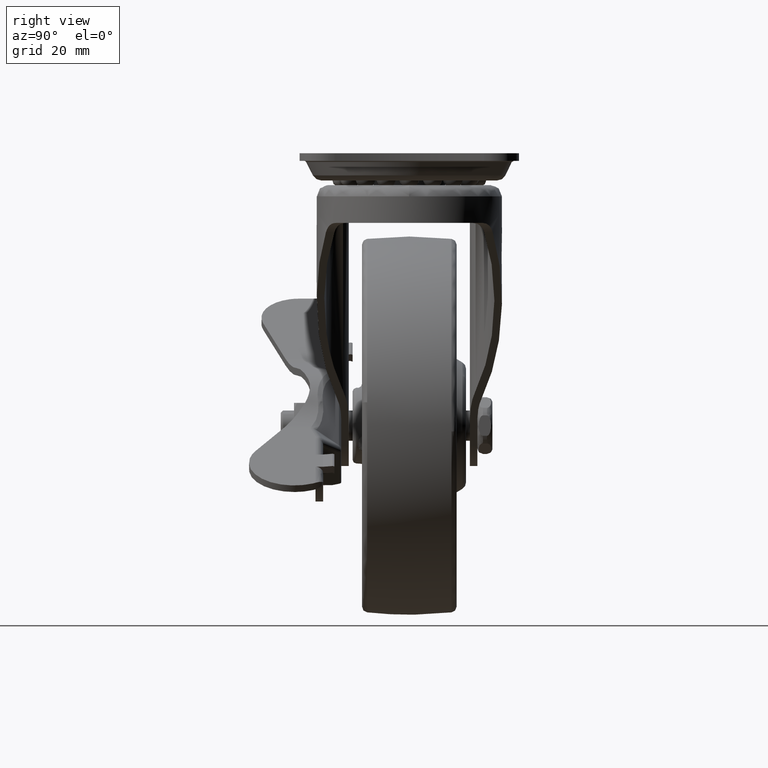
[diagram: clean part render]
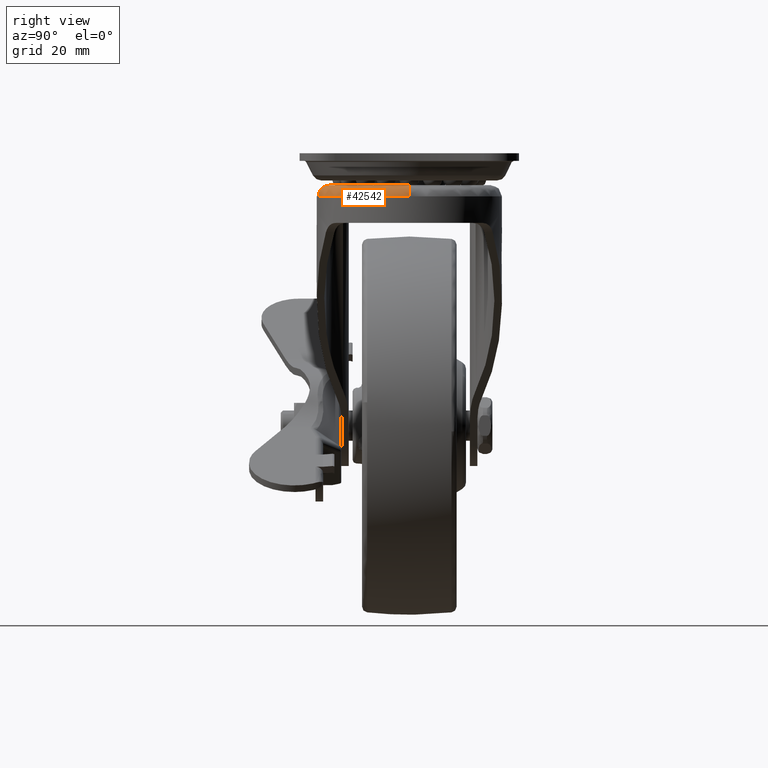
[diagram: same view with one face highlighted and labeled with its STEP entity id]
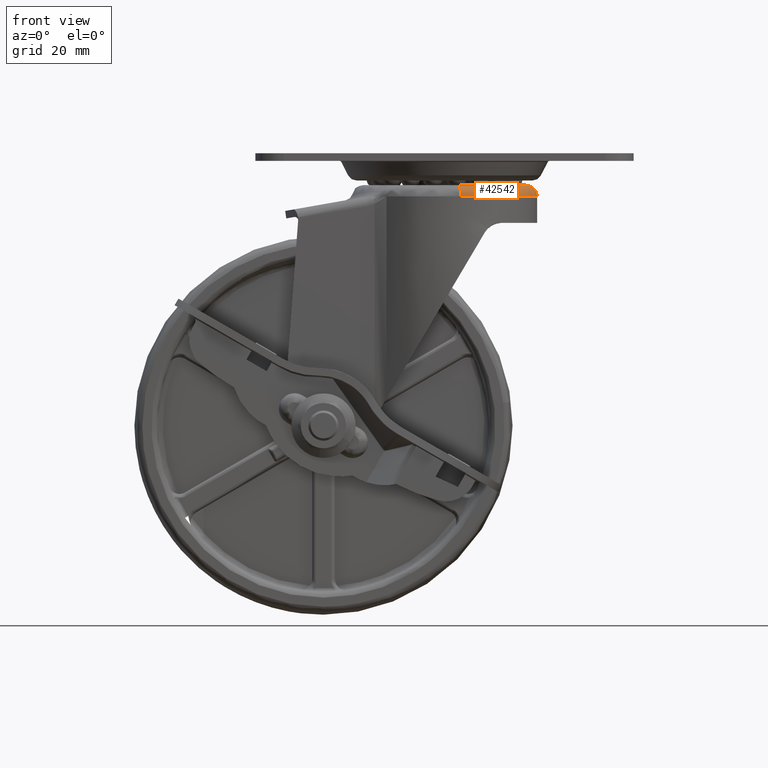
[diagram: same view with one face highlighted and labeled with its STEP entity id]
A machine part, right view. The second image highlights one B-rep face of the part: STEP entity #42542.
A second angle (front view) of the same face is appended — the face is thin or edge-on in the first view.
In plain terms, the highlighted face is a freeform B-spline surface patch.
Its self-contained STEP definition (entity closure, byte-faithful):
#42242=CARTESIAN_POINT('',(4.276173339646856,-24.123937107555498,-9.400001998327134));
#42243=VERTEX_POINT('',#42242);
#42256=CARTESIAN_POINT('',(3.752560288242226,-21.169985670197590,-6.400002000000001));
#42257=VERTEX_POINT('',#42256);
#42258=CARTESIAN_POINT('',(3.752560288242226,-21.169985670197590,-6.400002000000001));
#42259=CARTESIAN_POINT('',(3.812537802786486,-21.508347490671209,-6.399798562871077));
#42260=CARTESIAN_POINT('',(3.923889779038400,-22.136537199501721,-6.510821443963620));
#42261=CARTESIAN_POINT('',(4.057556512446853,-22.890615116810089,-6.920224804264058));
#42262=CARTESIAN_POINT('',(4.158596669583459,-23.460630926392859,-7.458080854715424));
#42263=CARTESIAN_POINT('',(4.248223293001825,-23.966257538185928,-8.246929262651131));
#42264=CARTESIAN_POINT('',(4.276282650163525,-24.124553780414882,-8.958092850889267));
#42265=CARTESIAN_POINT('',(4.276173339646856,-24.123937107555498,-9.400001998327134));
#42266=B_SPLINE_CURVE_WITH_KNOTS('',3,(#42258,#42259,#42260,#42261,#42262,#42263,#42264,#42265),.UNSPECIFIED.,.F.,.U.,(4,1,1,1,1,4),(0.000000571946087,1.030853910485774,1.914459921600274,2.577150118331610,3.387107232801323,4.712507216697341),.UNSPECIFIED.);
#42267=EDGE_CURVE('',#42257,#42243,#42266,.T.);
#42303=CARTESIAN_POINT('',(21.500000003836188,7.535010E-016,-6.400002000000000));
#42304=VERTEX_POINT('',#42303);
#42320=CARTESIAN_POINT('',(24.499999999999989,-1.300018E-015,-9.400001998348277));
#42321=VERTEX_POINT('',#42320);
#42322=CARTESIAN_POINT('',(21.500000003836188,7.535010E-016,-6.400002000000000));
#42323=CARTESIAN_POINT('',(21.941923163811939,6.930183E-016,-6.399304477618513));
#42324=CARTESIAN_POINT('',(22.653056483444910,5.070968E-016,-6.560210456190413));
#42325=CARTESIAN_POINT('',(23.421148851278691,1.279751E-016,-7.060110453023404));
#42326=CARTESIAN_POINT('',(23.897262073259888,-2.110687E-016,-7.560257515222307));
#42327=CARTESIAN_POINT('',(24.350843465503321,-6.758316E-016,-8.296005814193238));
#42328=CARTESIAN_POINT('',(24.500730554299029,-1.058475E-015,-8.958061914435318));
#42329=CARTESIAN_POINT('',(24.499999999999989,-1.300018E-015,-9.400001998348277));
#42330=B_SPLINE_CURVE_WITH_KNOTS('',3,(#42322,#42323,#42324,#42325,#42326,#42327,#42328,#42329),.UNSPECIFIED.,.F.,.U.,(4,1,1,1,1,4),(0.000000571887894,1.325400559831643,2.135357676706540,2.724356421975858,3.387107243289653,4.712507231239888),.UNSPECIFIED.);
#42331=EDGE_CURVE('',#42304,#42321,#42330,.T.);
#42493=CARTESIAN_POINT('',(21.291947592315882,1.303713E-015,-6.407224996002400));
#42494=CARTESIAN_POINT('',(21.291947592315893,-17.849684131096840,-6.407224996002401));
#42495=CARTESIAN_POINT('',(3.716247291568529,-20.965126718954881,-6.407224996002401));
#42496=CARTESIAN_POINT('',(24.733217397662063,1.514423E-015,-6.167994185442000));
#42497=CARTESIAN_POINT('',(24.733217397662077,-20.734604769238864,-6.167994185441998));
#42498=CARTESIAN_POINT('',(4.316878564880963,-24.353574733416135,-6.167994185441999));
#42499=CARTESIAN_POINT('',(24.492698945173519,1.499696E-015,-9.609174234192897));
#42500=CARTESIAN_POINT('',(24.492698945173512,-20.532970870507576,-9.609174234192897));
#42501=CARTESIAN_POINT('',(4.274899030422808,-24.116748120312447,-9.609174234192899));
#42509=(BOUNDED_SURFACE()B_SPLINE_SURFACE(2,2,((#42493,#42496,#42499),(#42494,#42497,#42500),(#42495,#42498,#42501)),.UNSPECIFIED.,.F.,.F.,.U.)B_SPLINE_SURFACE_WITH_KNOTS((3,3),(3,3),(0.0,35.623120208686572),(0.0,5.467111417930087),.UNSPECIFIED.)GEOMETRIC_REPRESENTATION_ITEM()RATIONAL_B_SPLINE_SURFACE(((0.915966717678244,0.599412909028485,0.910892897447420),(0.679879930243483,0.444916609863639,0.676113867047056),(0.859305888693901,0.562333797228922,0.854545930151333)))REPRESENTATION_ITEM('')SURFACE());
#42510=CARTESIAN_POINT('',(24.499999999999989,-1.300018E-015,-9.400001998348277));
#42511=CARTESIAN_POINT('',(24.500149020268079,-1.513463140922856,-9.400001998628085));
#42512=CARTESIAN_POINT('',(24.235173770714571,-4.362255002620766,-9.400001999095963));
#42513=CARTESIAN_POINT('',(23.033042829722351,-8.756408985659949,-9.400001999641882));
#42514=CARTESIAN_POINT('',(21.233242835908921,-12.459378467300469,-9.400001999927666));
#42515=CARTESIAN_POINT('',(18.636335266770349,-16.086523384967009,-9.400002000022802));
#42516=CARTESIAN_POINT('',(15.710688370984149,-18.983417755791681,-9.400001999910163));
#42517=CARTESIAN_POINT('',(12.529954238407131,-21.136559536678980,-9.400001999603488));
#42518=CARTESIAN_POINT('',(8.863882983660783,-22.972731261319780,-9.400001999130744));
#42519=CARTESIAN_POINT('',(6.204848958645814,-23.782598306997809,-9.400001998691307));
#42520=CARTESIAN_POINT('',(4.276173339646856,-24.123937107555498,-9.400001998327134));
#42521=B_SPLINE_CURVE_WITH_KNOTS('',3,(#42510,#42511,#42512,#42513,#42514,#42515,#42516,#42517,#42518,#42519,#42520),.UNSPECIFIED.,.F.,.U.,(4,1,1,1,1,1,1,1,4),(0.000000127351797,4.540378998828921,8.546624356367182,13.621191173171770,16.826208050596350,21.900720555499610,25.906953732677980,28.310712808258419,34.186491662784498),.UNSPECIFIED.);
#42522=EDGE_CURVE('',#42321,#42243,#42521,.T.);
#42523=ORIENTED_EDGE('',*,*,#42522,.F.);
#42524=ORIENTED_EDGE('',*,*,#42331,.F.);
#42525=CARTESIAN_POINT('',(3.752560288242226,-21.169985670197590,-6.400002000000001));
#42526=CARTESIAN_POINT('',(5.060337574375726,-20.938312492130830,-6.400002000000002));
#42527=CARTESIAN_POINT('',(7.632687538721079,-20.231468316265001,-6.400001999999993));
#42528=CARTESIAN_POINT('',(10.947760496180090,-18.616141186901750,-6.400002000000015));
#42529=CARTESIAN_POINT('',(13.886422481835510,-16.531700623004770,-6.400002000000011));
#42530=CARTESIAN_POINT('',(16.295588239873052,-14.172137358136091,-6.400001999999932));
#42531=CARTESIAN_POINT('',(18.379300932434180,-11.327819416665189,-6.400002000000057));
#42532=CARTESIAN_POINT('',(19.846790892479909,-8.468574468974738,-6.400001999999971));
#42533=CARTESIAN_POINT('',(21.129676695758121,-4.687274582907931,-6.400002000000032));
#42534=CARTESIAN_POINT('',(21.500550644647209,-1.875077351869851,-6.400001999999972));
#42535=CARTESIAN_POINT('',(21.500000003836188,7.535010E-016,-6.400002000000000));
#42536=B_SPLINE_CURVE_WITH_KNOTS('',3,(#42525,#42526,#42527,#42528,#42529,#42530,#42531,#42532,#42533,#42534,#42535),.UNSPECIFIED.,.F.,.U.,(4,1,1,1,1,1,1,1,4),(0.000000165590087,3.984414560853931,7.968854160446263,11.015787421184569,14.765879016335949,18.047099202701180,21.562768694028701,24.375341313406800,30.000390661791300),.UNSPECIFIED.);
#42537=EDGE_CURVE('',#42257,#42304,#42536,.T.);
#42538=ORIENTED_EDGE('',*,*,#42537,.F.);
#42539=ORIENTED_EDGE('',*,*,#42267,.T.);
#42540=EDGE_LOOP('',(#42523,#42524,#42538,#42539));
#42541=FACE_OUTER_BOUND('',#42540,.T.);
#42542=ADVANCED_FACE('',(#42541),#42509,.T.);